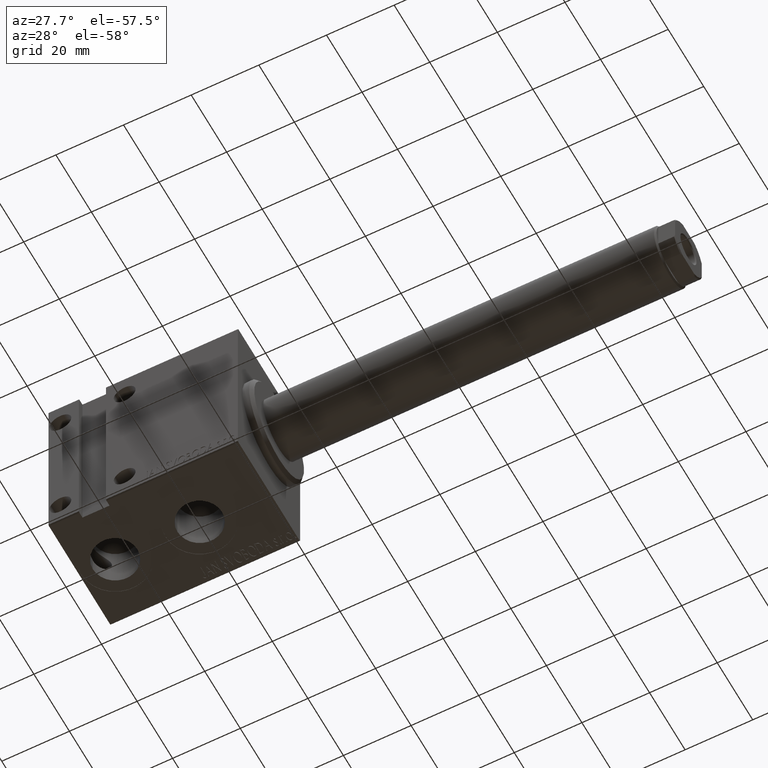
[diagram: clean part render]
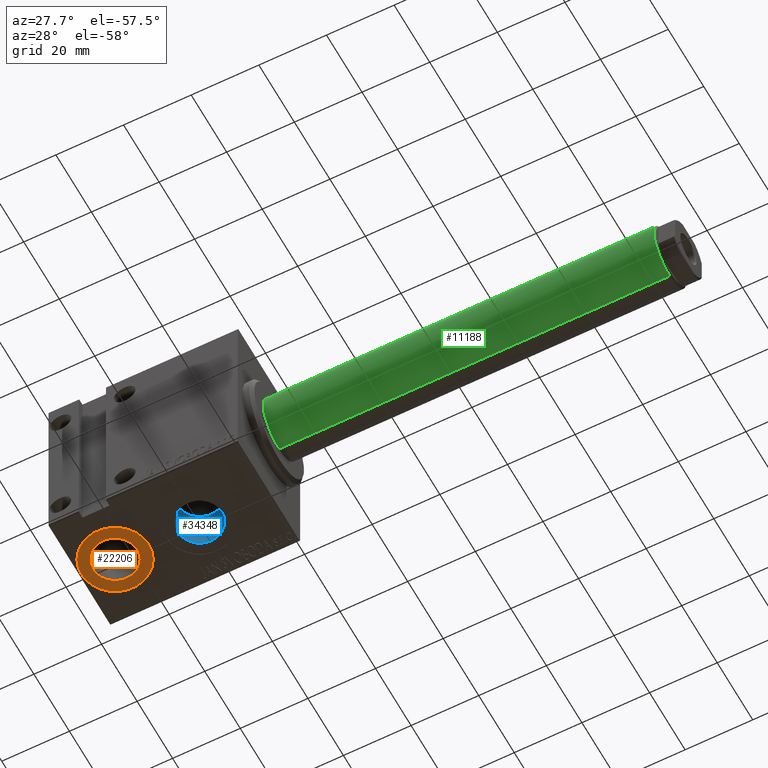
[diagram: same view with three faces highlighted in distinct colors, each labeled with its STEP entity id]
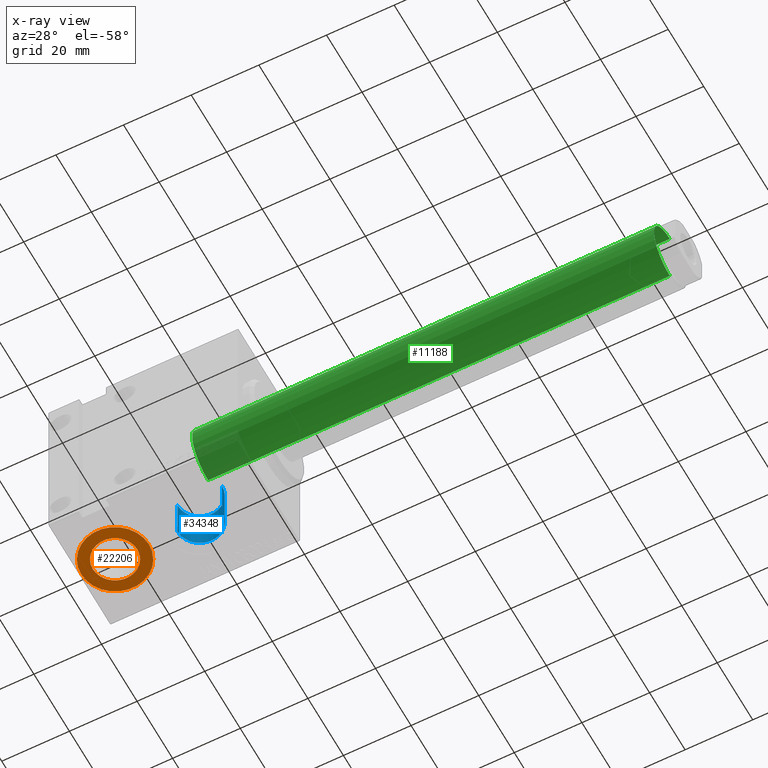
[diagram: x-ray of the same camera — body ghosted, the three highlighted faces saturated]
A machine part, auxiliary view with three faces highlighted in distinct colors.
The next image is the same camera in x-ray (body ghosted, the three faces saturated) — at least one of them is partly hidden behind the body in this view.
Their STEP definitions:

[orange] entity #22206 — the highlighted planar face has unit normal (-0, 0, -1).
#106 = VERTEX_POINT ( 'NONE', #6949 ) ;
#6949 = CARTESIAN_POINT ( 'NONE',  ( 38.91999999999999460, -5.788603209277299718E-15, -27.40000000000000213 ) ) ;
#7238 = AXIS2_PLACEMENT_3D ( 'NONE', #21457, #38915, #29288 ) ;
#7871 = VERTEX_POINT ( 'NONE', #9580 ) ;
#9461 = ORIENTED_EDGE ( 'NONE', *, *, #31254, .T. ) ;
#9580 = CARTESIAN_POINT ( 'NONE',  ( 55.50000000000000000, -7.289950443807785026E-15, -27.40000000000000213 ) ) ;
#10740 = AXIS2_PLACEMENT_3D ( 'NONE', #23599, #13133, #16615 ) ;
#11088 = FACE_OUTER_BOUND ( 'NONE', #33557, .T. ) ;
#11525 = DIRECTION ( 'NONE',  ( -1.000000000000000000, 0.000000000000000000, -0.000000000000000000 ) ) ;
#12725 = VERTEX_POINT ( 'NONE', #32233 ) ;
#13133 = DIRECTION ( 'NONE',  ( 0.000000000000000000, 0.000000000000000000, -1.000000000000000000 ) ) ;
#14422 = EDGE_CURVE ( 'NONE', #106, #33513, #40273, .T. ) ;
#16135 = DIRECTION ( 'NONE',  ( -1.000000000000000000, 0.000000000000000000, 0.000000000000000000 ) ) ;
#16615 = DIRECTION ( 'NONE',  ( -1.000000000000000000, 0.000000000000000000, 0.000000000000000000 ) ) ;
#17853 = FACE_BOUND ( 'NONE', #24168, .T. ) ;
#18065 = CARTESIAN_POINT ( 'NONE',  ( 45.50000000000000000, -8.514597242955138086E-15, -27.40000000000000213 ) ) ;
#19328 = DIRECTION ( 'NONE',  ( -1.000000000000000000, 0.000000000000000000, 0.000000000000000000 ) ) ;
#21300 = ORIENTED_EDGE ( 'NONE', *, *, #14422, .F. ) ;
#21457 = CARTESIAN_POINT ( 'NONE',  ( 45.50000000000000000, -8.514597242955138086E-15, -27.40000000000000213 ) ) ;
#22177 = CARTESIAN_POINT ( 'NONE',  ( 45.50000000000000000, -5.788603209277299718E-15, -27.40000000000000213 ) ) ;
#22206 = ADVANCED_FACE ( 'NONE', ( #17853, #11088 ), #24398, .T. ) ;
#22345 = ORIENTED_EDGE ( 'NONE', *, *, #24640, .F. ) ;
#23056 = AXIS2_PLACEMENT_3D ( 'NONE', #18065, #31385, #11525 ) ;
#23599 = CARTESIAN_POINT ( 'NONE',  ( 45.50000000000000000, -8.514597242955138086E-15, -27.40000000000000213 ) ) ;
#24168 = EDGE_LOOP ( 'NONE', ( #21300, #22345 ) ) ;
#24398 = PLANE ( 'NONE',  #23056 ) ;
#24640 = EDGE_CURVE ( 'NONE', #33513, #106, #41257, .T. ) ;
#24870 = CARTESIAN_POINT ( 'NONE',  ( 52.07999999999999829, -4.982785615438341465E-15, -27.40000000000000213 ) ) ;
#25384 = CIRCLE ( 'NONE', #7238, 10.00000000000000178 ) ;
#29104 = AXIS2_PLACEMENT_3D ( 'NONE', #35607, #32314, #16135 ) ;
#29288 = DIRECTION ( 'NONE',  ( -1.000000000000000000, 0.000000000000000000, 0.000000000000000000 ) ) ;
#31254 = EDGE_CURVE ( 'NONE', #7871, #12725, #25384, .T. ) ;
#31305 = EDGE_CURVE ( 'NONE', #12725, #7871, #40053, .T. ) ;
#31327 = ORIENTED_EDGE ( 'NONE', *, *, #31305, .T. ) ;
#31385 = DIRECTION ( 'NONE',  ( 0.000000000000000000, 0.000000000000000000, -1.000000000000000000 ) ) ;
#32233 = CARTESIAN_POINT ( 'NONE',  ( 35.50000000000000000, -8.514597242955138086E-15, -27.40000000000000213 ) ) ;
#32314 = DIRECTION ( 'NONE',  ( 0.000000000000000000, 0.000000000000000000, -1.000000000000000000 ) ) ;
#32895 = AXIS2_PLACEMENT_3D ( 'NONE', #22177, #35719, #19328 ) ;
#33513 = VERTEX_POINT ( 'NONE', #24870 ) ;
#33557 = EDGE_LOOP ( 'NONE', ( #31327, #9461 ) ) ;
#35607 = CARTESIAN_POINT ( 'NONE',  ( 45.50000000000000000, -5.788603209277299718E-15, -27.40000000000000213 ) ) ;
#35719 = DIRECTION ( 'NONE',  ( 0.000000000000000000, 0.000000000000000000, -1.000000000000000000 ) ) ;
#38915 = DIRECTION ( 'NONE',  ( 0.000000000000000000, 0.000000000000000000, -1.000000000000000000 ) ) ;
#40053 = CIRCLE ( 'NONE', #10740, 10.00000000000000178 ) ;
#40273 = CIRCLE ( 'NONE', #29104, 6.580000000000002736 ) ;
#41257 = CIRCLE ( 'NONE', #32895, 6.580000000000002736 ) ;

[blue] entity #34348 — the highlighted cylindrical surface (edge-blend (fillet) strip) has radius 6.58 mm, axis along (-0, 0, -1).
#98 = LINE ( 'NONE', #19332, #26092 ) ;
#691 = ORIENTED_EDGE ( 'NONE', *, *, #42089, .F. ) ;
#1650 = ORIENTED_EDGE ( 'NONE', *, *, #4775, .T. ) ;
#2645 = DIRECTION ( 'NONE',  ( -1.000000000000000000, 0.000000000000000000, 0.000000000000000000 ) ) ;
#3706 = AXIS2_PLACEMENT_3D ( 'NONE', #38864, #12002, #8933 ) ;
#4775 = EDGE_CURVE ( 'NONE', #40326, #34291, #22648, .T. ) ;
#6748 = CARTESIAN_POINT ( 'NONE',  ( 20.50000000000000355, -2.726986211408916281E-15, -27.40000000000000213 ) ) ;
#8797 = AXIS2_PLACEMENT_3D ( 'NONE', #13336, #42603, #2645 ) ;
#8933 = DIRECTION ( 'NONE',  ( -1.000000000000000000, 0.000000000000000000, 0.000000000000000000 ) ) ;
#10963 = CARTESIAN_POINT ( 'NONE',  ( 13.92000000000000171, -2.726986211408916281E-15, -14.50000000000000000 ) ) ;
#12002 = DIRECTION ( 'NONE',  ( -0.000000000000000000, -0.000000000000000000, -1.000000000000000000 ) ) ;
#13000 = DIRECTION ( 'NONE',  ( -0.000000000000000000, -0.000000000000000000, -1.000000000000000000 ) ) ;
#13336 = CARTESIAN_POINT ( 'NONE',  ( 20.50000000000000355, -2.726986211408916281E-15, -14.50000000000000000 ) ) ;
#13815 = CARTESIAN_POINT ( 'NONE',  ( 13.92000000000000171, -2.726986211408916281E-15, -27.40000000000000213 ) ) ;
#14447 = EDGE_LOOP ( 'NONE', ( #691, #29538, #1650, #29906 ) ) ;
#16609 = VERTEX_POINT ( 'NONE', #19012 ) ;
#17721 = CARTESIAN_POINT ( 'NONE',  ( 27.08000000000000540, -1.921168617569958028E-15, -27.40000000000000213 ) ) ;
#18363 = LINE ( 'NONE', #10963, #38053 ) ;
#19012 = CARTESIAN_POINT ( 'NONE',  ( 13.92000000000000171, -2.726986211408916281E-15, -14.50000000000000000 ) ) ;
#19332 = CARTESIAN_POINT ( 'NONE',  ( 27.08000000000000540, -1.921168617569958028E-15, -14.50000000000000000 ) ) ;
#20504 = DIRECTION ( 'NONE',  ( -1.000000000000000000, 0.000000000000000000, 0.000000000000000000 ) ) ;
#22648 = CIRCLE ( 'NONE', #26820, 6.580000000000002736 ) ;
#25529 = FACE_OUTER_BOUND ( 'NONE', #14447, .T. ) ;
#25745 = VERTEX_POINT ( 'NONE', #41140 ) ;
#26092 = VECTOR ( 'NONE', #13000, 1000.000000000000000 ) ;
#26170 = CYLINDRICAL_SURFACE ( 'NONE', #3706, 6.580000000000002736 ) ;
#26820 = AXIS2_PLACEMENT_3D ( 'NONE', #6748, #39731, #20504 ) ;
#29538 = ORIENTED_EDGE ( 'NONE', *, *, #36058, .T. ) ;
#29906 = ORIENTED_EDGE ( 'NONE', *, *, #40290, .F. ) ;
#30401 = CIRCLE ( 'NONE', #8797, 6.580000000000002736 ) ;
#34291 = VERTEX_POINT ( 'NONE', #13815 ) ;
#34348 = ADVANCED_FACE ( 'NONE', ( #25529 ), #26170, .F. ) ;
#36058 = EDGE_CURVE ( 'NONE', #25745, #40326, #98, .T. ) ;
#38053 = VECTOR ( 'NONE', #38251, 1000.000000000000000 ) ;
#38251 = DIRECTION ( 'NONE',  ( -0.000000000000000000, -0.000000000000000000, -1.000000000000000000 ) ) ;
#38864 = CARTESIAN_POINT ( 'NONE',  ( 20.50000000000000355, -2.726986211408916281E-15, -14.50000000000000000 ) ) ;
#39731 = DIRECTION ( 'NONE',  ( 0.000000000000000000, 0.000000000000000000, -1.000000000000000000 ) ) ;
#40290 = EDGE_CURVE ( 'NONE', #16609, #34291, #18363, .T. ) ;
#40326 = VERTEX_POINT ( 'NONE', #17721 ) ;
#41140 = CARTESIAN_POINT ( 'NONE',  ( 27.08000000000000540, -1.921168617569958028E-15, -14.50000000000000000 ) ) ;
#42089 = EDGE_CURVE ( 'NONE', #25745, #16609, #30401, .T. ) ;
#42603 = DIRECTION ( 'NONE',  ( 0.000000000000000000, 0.000000000000000000, -1.000000000000000000 ) ) ;

[green] entity #11188 — the highlighted cylindrical surface (edge-blend (fillet) strip) has radius 9 mm, axis along (-1, -0, 0).
#364 = DIRECTION ( 'NONE',  ( 0.000000000000000000, 0.000000000000000000, -1.000000000000000000 ) ) ;
#793 = AXIS2_PLACEMENT_3D ( 'NONE', #22162, #5348, #31770 ) ;
#2274 = LINE ( 'NONE', #9481, #9366 ) ;
#3566 = CARTESIAN_POINT ( 'NONE',  ( -9.000000000000000000, 0.000000000000000000, 169.5000000000000000 ) ) ;
#5199 = EDGE_LOOP ( 'NONE', ( #26311, #36052, #10547, #22362 ) ) ;
#5348 = DIRECTION ( 'NONE',  ( 0.000000000000000000, 0.000000000000000000, 1.000000000000000000 ) ) ;
#6601 = CARTESIAN_POINT ( 'NONE',  ( 0.000000000000000000, 0.000000000000000000, 170.0000000000000000 ) ) ;
#7451 = CARTESIAN_POINT ( 'NONE',  ( 9.000000000000000000, 1.102182119232617714E-15, 169.5000000000000000 ) ) ;
#9343 = LINE ( 'NONE', #36426, #26510 ) ;
#9366 = VECTOR ( 'NONE', #22589, 1000.000000000000000 ) ;
#9481 = CARTESIAN_POINT ( 'NONE',  ( -9.000000000000000000, 0.000000000000000000, 170.0000000000000000 ) ) ;
#10547 = ORIENTED_EDGE ( 'NONE', *, *, #31820, .T. ) ;
#11188 = ADVANCED_FACE ( 'NONE', ( #39148 ), #16433, .T. ) ;
#13325 = CIRCLE ( 'NONE', #793, 9.000000000000000000 ) ;
#16095 = EDGE_CURVE ( 'NONE', #18262, #35739, #9343, .T. ) ;
#16189 = CARTESIAN_POINT ( 'NONE',  ( -9.000000000000000000, 0.000000000000000000, 33.00000000000000000 ) ) ;
#16433 = CYLINDRICAL_SURFACE ( 'NONE', #31772, 9.000000000000000000 ) ;
#18262 = VERTEX_POINT ( 'NONE', #7451 ) ;
#19391 = DIRECTION ( 'NONE',  ( -0.000000000000000000, -0.000000000000000000, -1.000000000000000000 ) ) ;
#19649 = VERTEX_POINT ( 'NONE', #16189 ) ;
#20035 = CARTESIAN_POINT ( 'NONE',  ( 9.000000000000000000, 1.102182119232617714E-15, 33.00000000000000000 ) ) ;
#20206 = EDGE_CURVE ( 'NONE', #18262, #31970, #40479, .T. ) ;
#20238 = CARTESIAN_POINT ( 'NONE',  ( 0.000000000000000000, 0.000000000000000000, 169.5000000000000000 ) ) ;
#22162 = CARTESIAN_POINT ( 'NONE',  ( 0.000000000000000000, 0.000000000000000000, 33.00000000000000000 ) ) ;
#22362 = ORIENTED_EDGE ( 'NONE', *, *, #22685, .T. ) ;
#22589 = DIRECTION ( 'NONE',  ( -0.000000000000000000, -0.000000000000000000, -1.000000000000000000 ) ) ;
#22685 = EDGE_CURVE ( 'NONE', #19649, #35739, #13325, .T. ) ;
#23718 = DIRECTION ( 'NONE',  ( 1.000000000000000000, 0.000000000000000000, 0.000000000000000000 ) ) ;
#25101 = AXIS2_PLACEMENT_3D ( 'NONE', #20238, #364, #23718 ) ;
#26311 = ORIENTED_EDGE ( 'NONE', *, *, #16095, .F. ) ;
#26510 = VECTOR ( 'NONE', #19391, 1000.000000000000000 ) ;
#26678 = DIRECTION ( 'NONE',  ( -0.000000000000000000, -0.000000000000000000, -1.000000000000000000 ) ) ;
#31770 = DIRECTION ( 'NONE',  ( 1.000000000000000000, 0.000000000000000000, 0.000000000000000000 ) ) ;
#31772 = AXIS2_PLACEMENT_3D ( 'NONE', #6601, #26678, #43071 ) ;
#31820 = EDGE_CURVE ( 'NONE', #31970, #19649, #2274, .T. ) ;
#31970 = VERTEX_POINT ( 'NONE', #3566 ) ;
#35739 = VERTEX_POINT ( 'NONE', #20035 ) ;
#36052 = ORIENTED_EDGE ( 'NONE', *, *, #20206, .T. ) ;
#36426 = CARTESIAN_POINT ( 'NONE',  ( 9.000000000000000000, 1.102182119232617714E-15, 170.0000000000000000 ) ) ;
#39148 = FACE_OUTER_BOUND ( 'NONE', #5199, .T. ) ;
#40479 = CIRCLE ( 'NONE', #25101, 9.000000000000000000 ) ;
#43071 = DIRECTION ( 'NONE',  ( -1.000000000000000000, 0.000000000000000000, 0.000000000000000000 ) ) ;